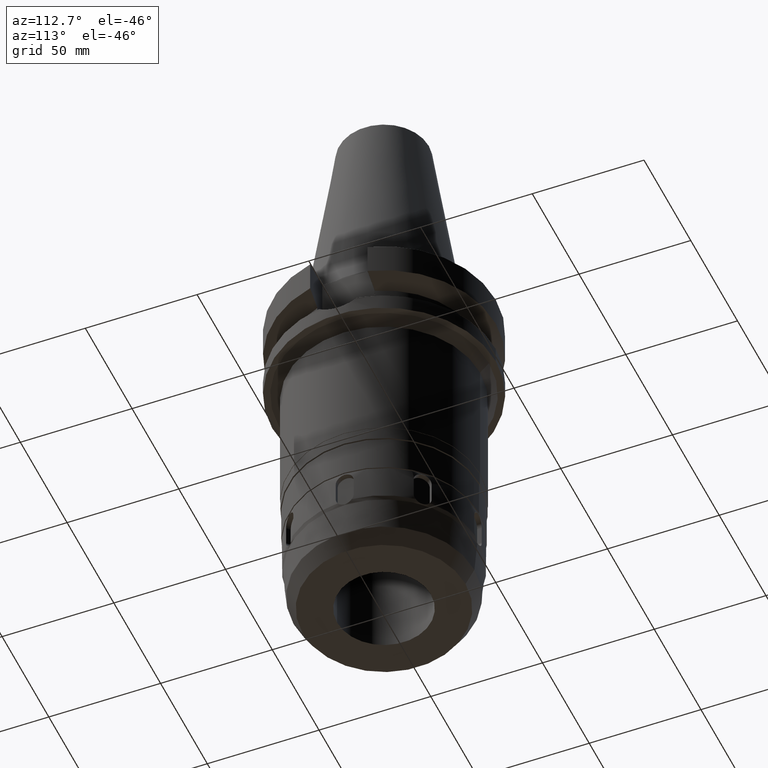
[diagram: clean part render]
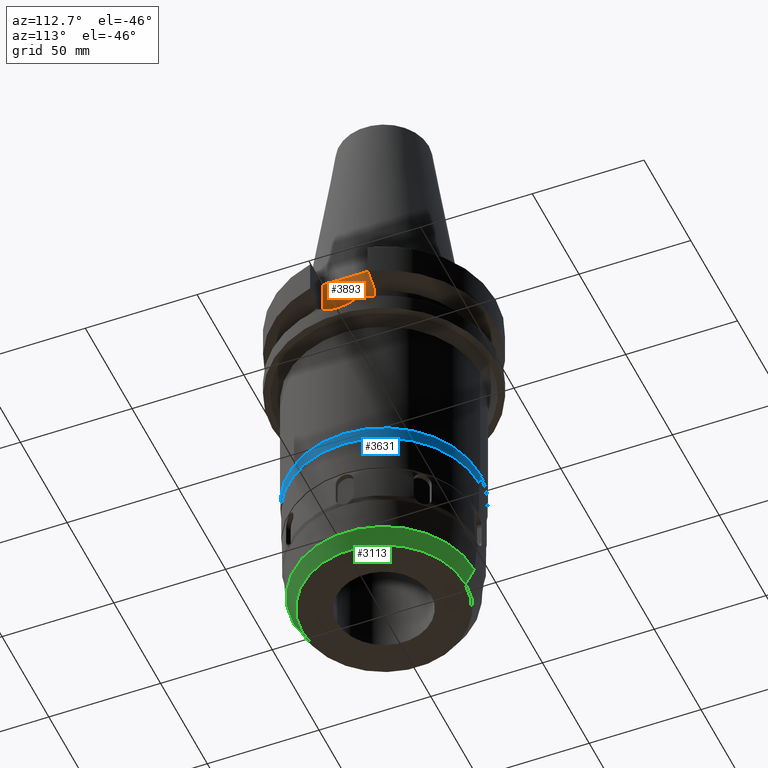
[diagram: same view with three faces highlighted in distinct colors, each labeled with its STEP entity id]
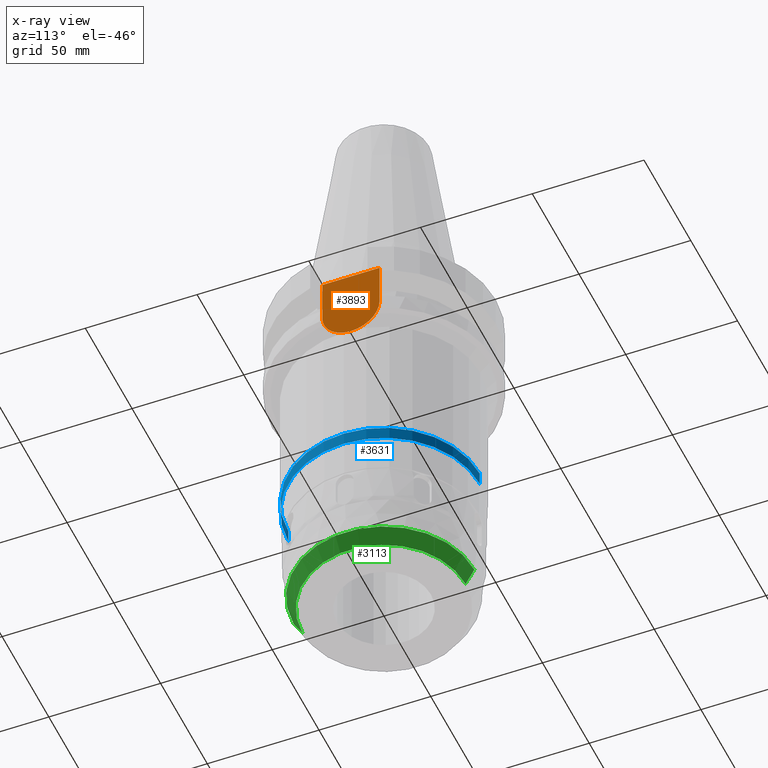
[diagram: x-ray of the same camera — body ghosted, the three highlighted faces saturated]
A machine part, auxiliary view with three faces highlighted in distinct colors.
The next image is the same camera in x-ray (body ghosted, the three faces saturated) — at least one of them is partly hidden behind the body in this view.
Their STEP definitions:

[orange] entity #3893 — the highlighted planar face has unit normal (1, 0, 0).
#1667=DIRECTION('',(0.E0,0.E0,-1.E0));
#1668=VECTOR('',#1667,1.965E1);
#1669=CARTESIAN_POINT('',(3.54E1,1.285E1,-1.5E0));
#1670=LINE('',#1669,#1668);
#1674=CARTESIAN_POINT('',(3.54E1,0.E0,-2.115E1));
#1675=DIRECTION('',(-1.E0,0.E0,0.E0));
#1676=DIRECTION('',(0.E0,1.E0,0.E0));
#1677=AXIS2_PLACEMENT_3D('',#1674,#1675,#1676);
#1682=CARTESIAN_POINT('',(3.54E1,0.E0,-2.115E1));
#1683=DIRECTION('',(-1.E0,0.E0,0.E0));
#1684=DIRECTION('',(0.E0,0.E0,-1.E0));
#1685=AXIS2_PLACEMENT_3D('',#1682,#1683,#1684);
#1690=DIRECTION('',(0.E0,0.E0,1.E0));
#1691=VECTOR('',#1690,1.965E1);
#1692=CARTESIAN_POINT('',(3.54E1,-1.285E1,-2.115E1));
#1693=LINE('',#1692,#1691);
#1727=DIRECTION('',(0.E0,-1.E0,0.E0));
#1728=VECTOR('',#1727,2.57E1);
#1729=CARTESIAN_POINT('',(3.54E1,1.285E1,-1.5E0));
#1730=LINE('',#1729,#1728);
#2687=CARTESIAN_POINT('',(3.54E1,-1.285E1,-2.115E1));
#2688=VERTEX_POINT('',#2687);
#2689=CARTESIAN_POINT('',(3.54E1,0.E0,-3.4E1));
#2690=VERTEX_POINT('',#2689);
#2691=CARTESIAN_POINT('',(3.54E1,1.285E1,-2.115E1));
#2692=VERTEX_POINT('',#2691);
#2739=CARTESIAN_POINT('',(3.54E1,1.285E1,-1.5E0));
#2740=VERTEX_POINT('',#2739);
#2741=CARTESIAN_POINT('',(3.54E1,-1.285E1,-1.5E0));
#2742=VERTEX_POINT('',#2741);
#3879=CARTESIAN_POINT('',(3.54E1,0.E0,0.E0));
#3880=DIRECTION('',(1.E0,0.E0,0.E0));
#3881=DIRECTION('',(0.E0,0.E0,-1.E0));
#3882=AXIS2_PLACEMENT_3D('',#3879,#3880,#3881);
#3883=PLANE('',#3882);
#3885=ORIENTED_EDGE('',*,*,#3884,.F.);
#3886=ORIENTED_EDGE('',*,*,#3868,.T.);
#3887=ORIENTED_EDGE('',*,*,#3756,.T.);
#3888=ORIENTED_EDGE('',*,*,#3754,.T.);
#3890=ORIENTED_EDGE('',*,*,#3889,.T.);
#3891=EDGE_LOOP('',(#3885,#3886,#3887,#3888,#3890));
#3892=FACE_OUTER_BOUND('',#3891,.F.);
#1678=CIRCLE('',#1677,1.285E1);
#1686=CIRCLE('',#1685,1.285E1);
#3754=EDGE_CURVE('',#2690,#2688,#1686,.T.);
#3756=EDGE_CURVE('',#2692,#2690,#1678,.T.);
#3868=EDGE_CURVE('',#2740,#2692,#1670,.T.);
#3884=EDGE_CURVE('',#2740,#2742,#1730,.T.);
#3889=EDGE_CURVE('',#2688,#2742,#1693,.T.);
#3893=ADVANCED_FACE('',(#3892),#3883,.T.);

[blue] entity #3631 — the highlighted cylindrical surface (partial cylindrical patch) has radius 42.85 mm, axis along (0, 0, -1).
#1281=CARTESIAN_POINT('',(0.E0,0.E0,-1.08E2));
#1282=DIRECTION('',(0.E0,0.E0,1.E0));
#1283=DIRECTION('',(0.E0,-1.E0,0.E0));
#1284=AXIS2_PLACEMENT_3D('',#1281,#1282,#1283);
#1312=DIRECTION('',(0.E0,0.E0,-1.E0));
#1313=VECTOR('',#1312,6.E0);
#1314=CARTESIAN_POINT('',(0.E0,-4.285E1,-1.02E2));
#1315=LINE('',#1314,#1313);
#1319=DIRECTION('',(0.E0,0.E0,-1.E0));
#1320=VECTOR('',#1319,6.E0);
#1321=CARTESIAN_POINT('',(0.E0,4.285E1,-1.02E2));
#1322=LINE('',#1321,#1320);
#1350=CARTESIAN_POINT('',(0.E0,2.634705123686E-14,-1.02E2));
#1351=DIRECTION('',(0.E0,0.E0,-1.E0));
#1352=DIRECTION('',(0.E0,1.E0,0.E0));
#1353=AXIS2_PLACEMENT_3D('',#1350,#1351,#1352);
#2654=CARTESIAN_POINT('',(0.E0,4.285E1,-1.08E2));
#2655=VERTEX_POINT('',#2654);
#2656=CARTESIAN_POINT('',(0.E0,-4.285E1,-1.08E2));
#2657=VERTEX_POINT('',#2656);
#2658=CARTESIAN_POINT('',(0.E0,4.285E1,-1.02E2));
#2659=VERTEX_POINT('',#2658);
#2660=CARTESIAN_POINT('',(0.E0,-4.285E1,-1.02E2));
#2661=VERTEX_POINT('',#2660);
#3619=CARTESIAN_POINT('',(0.E0,2.634705123686E-14,1.1514E2));
#3620=DIRECTION('',(0.E0,0.E0,-1.E0));
#3621=DIRECTION('',(0.E0,-1.E0,0.E0));
#3622=AXIS2_PLACEMENT_3D('',#3619,#3620,#3621);
#3623=CYLINDRICAL_SURFACE('',#3622,4.285E1);
#3624=ORIENTED_EDGE('',*,*,#3609,.T.);
#3625=ORIENTED_EDGE('',*,*,#3586,.F.);
#3626=ORIENTED_EDGE('',*,*,#3613,.F.);
#3628=ORIENTED_EDGE('',*,*,#3627,.F.);
#3629=EDGE_LOOP('',(#3624,#3625,#3626,#3628));
#3630=FACE_OUTER_BOUND('',#3629,.F.);
#1285=CIRCLE('',#1284,4.285E1);
#1354=CIRCLE('',#1353,4.285E1);
#3586=EDGE_CURVE('',#2657,#2655,#1285,.T.);
#3609=EDGE_CURVE('',#2659,#2655,#1322,.T.);
#3613=EDGE_CURVE('',#2661,#2657,#1315,.T.);
#3627=EDGE_CURVE('',#2659,#2661,#1354,.T.);
#3631=ADVANCED_FACE('',(#3630),#3623,.T.);

[green] entity #3113 — the highlighted conical surface has half-angle 30 deg.
#262=CARTESIAN_POINT('',(0.E0,0.E0,-1.65E2));
#263=DIRECTION('',(0.E0,0.E0,1.E0));
#264=DIRECTION('',(0.E0,-1.E0,0.E0));
#265=AXIS2_PLACEMENT_3D('',#262,#263,#264);
#294=DIRECTION('',(0.E0,-4.999999999999E-1,-8.660254037845E-1));
#295=VECTOR('',#294,7.909698687897E0);
#296=CARTESIAN_POINT('',(0.E0,4.045484934395E1,-1.5815E2));
#297=LINE('',#296,#295);
#301=CARTESIAN_POINT('',(0.E0,0.E0,-1.5815E2));
#302=DIRECTION('',(0.E0,0.E0,1.E0));
#303=DIRECTION('',(0.E0,-1.E0,0.E0));
#304=AXIS2_PLACEMENT_3D('',#301,#302,#303);
#309=DIRECTION('',(0.E0,4.999999999999E-1,-8.660254037845E-1));
#310=VECTOR('',#309,7.909698687897E0);
#311=CARTESIAN_POINT('',(0.E0,-4.045484934395E1,-1.5815E2));
#312=LINE('',#311,#310);
#2520=CARTESIAN_POINT('',(0.E0,-3.65E1,-1.65E2));
#2521=CARTESIAN_POINT('',(0.E0,3.65E1,-1.65E2));
#2522=VERTEX_POINT('',#2520);
#2523=VERTEX_POINT('',#2521);
#2524=CARTESIAN_POINT('',(0.E0,4.045484934395E1,-1.5815E2));
#2525=VERTEX_POINT('',#2524);
#2526=CARTESIAN_POINT('',(0.E0,-4.045484934395E1,-1.5815E2));
#2527=VERTEX_POINT('',#2526);
#3099=CARTESIAN_POINT('',(0.E0,0.E0,-1.61575E2));
#3100=DIRECTION('',(0.E0,0.E0,1.E0));
#3101=DIRECTION('',(0.E0,1.E0,0.E0));
#3102=AXIS2_PLACEMENT_3D('',#3099,#3100,#3101);
#3103=CONICAL_SURFACE('',#3102,3.847742467197E1,3.E1);
#3105=ORIENTED_EDGE('',*,*,#3104,.T.);
#3106=ORIENTED_EDGE('',*,*,#3088,.F.);
#3108=ORIENTED_EDGE('',*,*,#3107,.F.);
#3110=ORIENTED_EDGE('',*,*,#3109,.T.);
#3111=EDGE_LOOP('',(#3105,#3106,#3108,#3110));
#3112=FACE_OUTER_BOUND('',#3111,.F.);
#266=CIRCLE('',#265,3.65E1);
#305=CIRCLE('',#304,4.045484934395E1);
#3088=EDGE_CURVE('',#2522,#2523,#266,.T.);
#3104=EDGE_CURVE('',#2525,#2523,#297,.T.);
#3107=EDGE_CURVE('',#2527,#2522,#312,.T.);
#3109=EDGE_CURVE('',#2527,#2525,#305,.T.);
#3113=ADVANCED_FACE('',(#3112),#3103,.T.);